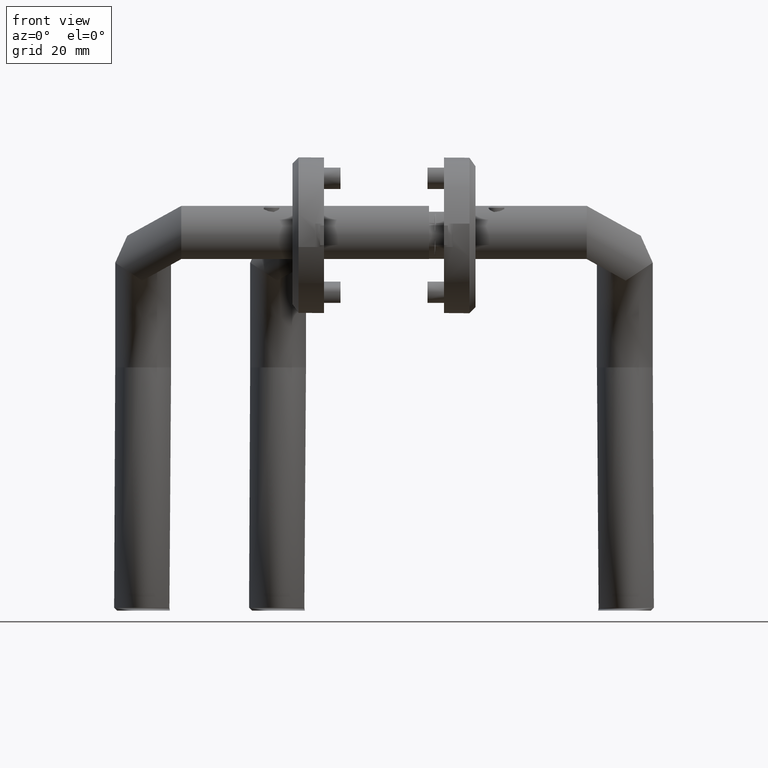
[diagram: clean part render]
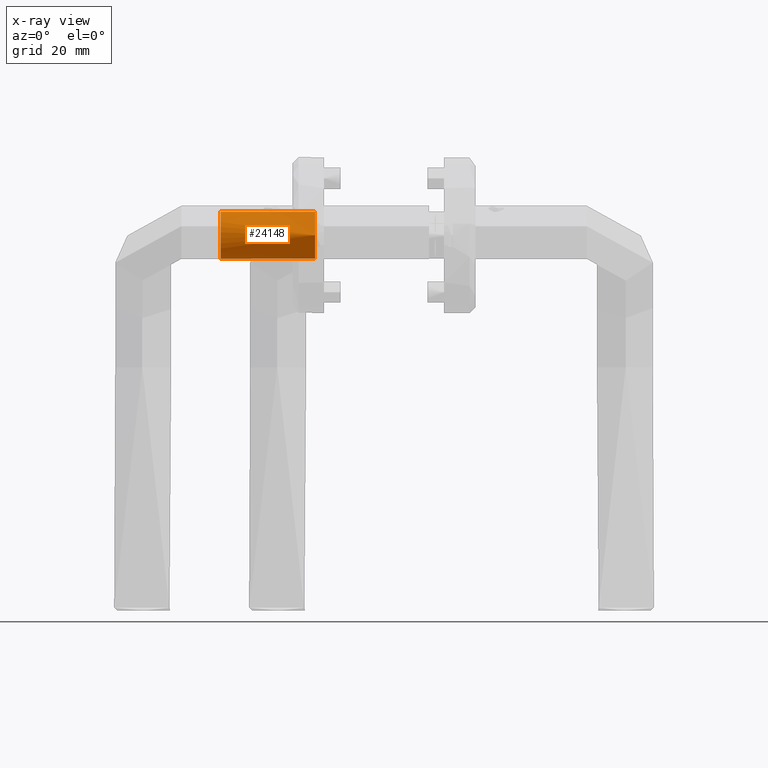
[diagram: x-ray — body ghosted, one internal face saturated and labeled with its STEP entity id]
A machine part, front view, then the same camera in x-ray: the body is ghosted and one INTERNAL B-rep face — a face not visible from any outside direction — is saturated and labeled: STEP entity #24148.
In plain terms, the highlighted cylindrical surface (bore or boss wall) has radius 7.85 mm, axis along (1, -0, 0).
Its self-contained STEP definition (entity closure, byte-faithful):
#46 = CARTESIAN_POINT ( 'NONE',  ( -1.950000000000002200, 0.0000000000000000000, 24.50000000000003900 ) ) ;
#154 = B_SPLINE_CURVE_WITH_KNOTS ( 'NONE', 3,
 ( #35819, #12552, #27435, #1493, #18820, #21563, #4514, #30201, #13045, #33074, #15946, #35937, #1620, #10263, #7646, #27571, #21816, #16184, #33314, #30817, #24663, #19312, #13525, #13291, #27934, #10378, #33559, #30689, #16435, #19189, #18940, #19071, #33441, #7526, #1743, #30441, #7890, #36426, #36190, #16310, #4765, #33673, #10752, #5128, #10631, #2109, #36314, #25158, #36553, #10505, #1864, #24791, #30567, #13650, #1981, #21930, #13407, #24914, #22049, #27686, #4889, #30328 ),
 .UNSPECIFIED., .T., .F.,
 ( 4, 2, 2, 2, 2, 2, 2, 2, 2, 2, 2, 2, 2, 2, 2, 2, 2, 2, 2, 2, 2, 2, 2, 2, 2, 2, 2, 2, 2, 2, 4 ),
 ( 0.0000000000000000000, 0.0004916676346564887100, 0.0009833352693129772000, 0.001475002903969466100, 0.001966670538625954800, 0.002950005807938932200, 0.003441673442595423500, 0.003933341077251914900, 0.004425008711908405700, 0.004916676346564897500, 0.005408343981221388300, 0.005900011615877880100, 0.006391679250534371000, 0.006883346885190862700, 0.007375014519847353600, 0.007866682154503845300, 0.008358349789160337100, 0.008850017423816830500, 0.009341685058473322300, 0.009833352693129814000, 0.01032502032778630600, 0.01081668796244279900, 0.01130835559709929100, 0.01180002323175578300, 0.01229169086641227400, 0.01278335850106876800, 0.01376669377038174400, 0.01425836140503823100, 0.01475002903969471900, 0.01524169667435120600, 0.01573336430900769400 ),
 .UNSPECIFIED. ) ;
#1493 = CARTESIAN_POINT ( 'NONE',  ( -1.975360598605850900, 0.6506773914354808700, 9.919382335193825300 ) ) ;
#1620 = CARTESIAN_POINT ( 'NONE',  ( -2.331953651937851600, 2.419078772989926100, 8.152085949960657300 ) ) ;
#1697 = CIRCLE ( 'NONE', #18287, 7.849999999999999600 ) ;
#1743 = CARTESIAN_POINT ( 'NONE',  ( -1.990259856097238900, -0.8084216882191680400, 5.128687615706724900 ) ) ;
#1864 = CARTESIAN_POINT ( 'NONE',  ( -2.316337309387356500, -2.370987707599417700, 8.309321842416745000 ) ) ;
#1981 = CARTESIAN_POINT ( 'NONE',  ( -2.098586111927949200, -1.526309635492221900, 9.486678156997696100 ) ) ;
#2109 = CARTESIAN_POINT ( 'NONE',  ( -2.353057057999241600, -2.483281829276065900, 7.168260144729445400 ) ) ;
#2502 = DIRECTION ( 'NONE',  ( -1.972152263052526900E-031, -3.889170968374258800E-034, -1.000000000000000000 ) ) ;
#2752 = CARTESIAN_POINT ( 'NONE',  ( -9.800000000000000700, 0.0000000000000000000, 24.50000000000003900 ) ) ;
#2805 = CARTESIAN_POINT ( 'NONE',  ( -1.949999999999996800, -1.540743955509788700E-030, 9.999999999999998200 ) ) ;
#4514 = CARTESIAN_POINT ( 'NONE',  ( -2.049835540205384300, 1.255547246565432300, 9.667990771411915300 ) ) ;
#4765 = CARTESIAN_POINT ( 'NONE',  ( -2.205016718890033800, -1.986824642136730800, 5.973967072932333100 ) ) ;
#4889 = CARTESIAN_POINT ( 'NONE',  ( -1.949999999999997100, -0.1663271035317407700, 10.00000000000000200 ) ) ;
#5128 = CARTESIAN_POINT ( 'NONE',  ( -2.316444650212627000, -2.371347067262873600, 6.691386533385486500 ) ) ;
#7526 = CARTESIAN_POINT ( 'NONE',  ( -1.975438278726479300, -0.6520438707957750800, 5.080865027122197100 ) ) ;
#7646 = CARTESIAN_POINT ( 'NONE',  ( -2.358691909127925300, 2.499886779604183500, 7.665969627596670200 ) ) ;
#7714 = VERTEX_POINT ( 'NONE', #2805 ) ;
#7890 = CARTESIAN_POINT ( 'NONE',  ( -2.049972585820545300, -1.256354931608743900, 5.332506363625991100 ) ) ;
#8795 = FACE_OUTER_BOUND ( 'NONE', #28922, .T. ) ;
#9214 = CARTESIAN_POINT ( 'NONE',  ( -1.950000000000002200, -3.851859888774471700E-031, -7.000000000000020400 ) ) ;
#9965 = VERTEX_POINT ( 'NONE', #46 ) ;
#10263 = CARTESIAN_POINT ( 'NONE',  ( -2.353210535344120800, 2.483744156676579400, 7.828896883903584400 ) ) ;
#10378 = CARTESIAN_POINT ( 'NONE',  ( -2.050145285200961200, 1.257407322524556300, 5.333123441028848600 ) ) ;
#10505 = CARTESIAN_POINT ( 'NONE',  ( -2.332127616856068300, -2.419613174249179500, 8.150025874492422800 ) ) ;
#10520 = EDGE_CURVE ( 'NONE', #9965, #9965, #1697, .T. ) ;
#10631 = CARTESIAN_POINT ( 'NONE',  ( -2.331899841439351500, -2.418910466870164600, 6.847610447314208300 ) ) ;
#10752 = CARTESIAN_POINT ( 'NONE',  ( -2.277493905325217700, -2.244724847799441500, 6.387186893733570500 ) ) ;
#10957 = ORIENTED_EDGE ( 'NONE', *, *, #35429, .T. ) ;
#11922 = CYLINDRICAL_SURFACE ( 'NONE', #25929, 7.849999999999997900 ) ;
#12362 = EDGE_CURVE ( 'NONE', #7714, #7714, #154, .T. ) ;
#12552 = CARTESIAN_POINT ( 'NONE',  ( -1.949999999999996800, 0.1663271035317407400, 9.999999999999998200 ) ) ;
#13045 = CARTESIAN_POINT ( 'NONE',  ( -2.125298850725605400, 1.653862943130006700, 9.381742250496417400 ) ) ;
#13291 = CARTESIAN_POINT ( 'NONE',  ( -2.124991034199241300, 1.652487650323280600, 5.616965081919937900 ) ) ;
#13407 = CARTESIAN_POINT ( 'NONE',  ( -2.027775020038262300, -1.112723584859275100, 9.744680884073282800 ) ) ;
#13525 = CARTESIAN_POINT ( 'NONE',  ( -2.178237088088305700, 1.882872320206645300, 5.847327085301093200 ) ) ;
#13650 = CARTESIAN_POINT ( 'NONE',  ( -2.125309370236194700, -1.653917895037600300, 9.381705236244965100 ) ) ;
#15433 = CARTESIAN_POINT ( 'NONE',  ( -9.800000000000000700, -3.851859888774471700E-031, -7.000000000000020400 ) ) ;
#15946 = CARTESIAN_POINT ( 'NONE',  ( -2.258489346735788100, 2.182940008413204700, 8.761182814414105700 ) ) ;
#16184 = CARTESIAN_POINT ( 'NONE',  ( -2.332032967751786600, 2.419320908842565600, 6.849024537163266800 ) ) ;
#16310 = CARTESIAN_POINT ( 'NONE',  ( -2.178193592102578800, -1.882711239978614300, 5.847114561690550400 ) ) ;
#16435 = CARTESIAN_POINT ( 'NONE',  ( -1.975611367669903200, 0.6539639519109026200, 5.081424318018347800 ) ) ;
#16945 = CARTESIAN_POINT ( 'NONE',  ( -9.800000000000000700, 0.0000000000000000000, 24.50000000000003900 ) ) ;
#18287 = AXIS2_PLACEMENT_3D ( 'NONE', #2752, #34209, #22806 ) ;
#18416 = EDGE_LOOP ( 'NONE', ( #25206 ) ) ;
#18688 = FACE_BOUND ( 'NONE', #18416, .T. ) ;
#18806 = DIRECTION ( 'NONE',  ( 1.000000000000000000, 0.0000000000000000000, 0.0000000000000000000 ) ) ;
#18820 = CARTESIAN_POINT ( 'NONE',  ( -1.990422550186744500, 0.8100577186500034200, 9.870783678293346200 ) ) ;
#18940 = CARTESIAN_POINT ( 'NONE',  ( -1.950021670309643400, 0.1649011203877659400, 5.000068044777509400 ) ) ;
#19071 = CARTESIAN_POINT ( 'NONE',  ( -1.949978466111728300, -0.1628314269536482200, 4.999932383585608900 ) ) ;
#19164 = AXIS2_PLACEMENT_3D ( 'NONE', #15433, #27298, #18806 ) ;
#19189 = CARTESIAN_POINT ( 'NONE',  ( -1.955297538070218400, 0.3307107556887428600, 5.016492887881386600 ) ) ;
#19312 = CARTESIAN_POINT ( 'NONE',  ( -2.205139297483599500, 1.987296848023906200, 5.974557873437207800 ) ) ;
#19809 = VERTEX_POINT ( 'NONE', #9214 ) ;
#20918 = CIRCLE ( 'NONE', #19164, 7.849999999999999600 ) ;
#21563 = CARTESIAN_POINT ( 'NONE',  ( -2.027718302237830400, 1.112353659052461200, 9.744878191350071700 ) ) ;
#21816 = CARTESIAN_POINT ( 'NONE',  ( -2.353169705818935100, 2.483619098085724000, 7.170577947304400000 ) ) ;
#21930 = CARTESIAN_POINT ( 'NONE',  ( -2.049868104465800500, -1.255727908668481200, 9.667869604537886000 ) ) ;
#21976 = ORIENTED_EDGE ( 'NONE', *, *, #10520, .F. ) ;
#22049 = CARTESIAN_POINT ( 'NONE',  ( -1.975401069011180300, -0.6512087187244562900, 9.919252164818814800 ) ) ;
#22687 = DIRECTION ( 'NONE',  ( -1.000000000000000000, 0.0000000000000000000, 0.0000000000000000000 ) ) ;
#22806 = DIRECTION ( 'NONE',  ( 1.000000000000000000, 0.0000000000000000000, 0.0000000000000000000 ) ) ;
#24148 = ADVANCED_FACE ( 'NONE', ( #18688, #8795, #29876 ), #11922, .T. ) ;
#24663 = CARTESIAN_POINT ( 'NONE',  ( -2.254673965305798300, 2.167789861347158900, 6.244209587272367300 ) ) ;
#24791 = CARTESIAN_POINT ( 'NONE',  ( -2.258555993685988500, -2.183181670281117500, 8.760974231041247500 ) ) ;
#24914 = CARTESIAN_POINT ( 'NONE',  ( -1.990504578532325000, -0.8108120482076909300, 9.870512575395313300 ) ) ;
#25158 = CARTESIAN_POINT ( 'NONE',  ( -2.358739951104626500, -2.500029776963275100, 7.664322337496990700 ) ) ;
#25206 = ORIENTED_EDGE ( 'NONE', *, *, #12362, .T. ) ;
#25929 = AXIS2_PLACEMENT_3D ( 'NONE', #16945, #2502, #22687 ) ;
#27298 = DIRECTION ( 'NONE',  ( 1.972152263052526900E-031, 3.889170968374258800E-034, 1.000000000000000000 ) ) ;
#27435 = CARTESIAN_POINT ( 'NONE',  ( -1.955276754880813900, 0.3296665543572500600, 9.983568383296789900 ) ) ;
#27571 = CARTESIAN_POINT ( 'NONE',  ( -2.358767590165173000, 2.500112044877544500, 7.337458955391055900 ) ) ;
#27686 = CARTESIAN_POINT ( 'NONE',  ( -1.955280179655499500, -0.3298365753949352700, 9.983558267054553100 ) ) ;
#27934 = CARTESIAN_POINT ( 'NONE',  ( -2.098814674166304100, 1.527437675453568100, 5.514210146021983200 ) ) ;
#28922 = EDGE_LOOP ( 'NONE', ( #10957 ) ) ;
#29876 = FACE_OUTER_BOUND ( 'NONE', #31137, .T. ) ;
#30201 = CARTESIAN_POINT ( 'NONE',  ( -2.098619396321421700, 1.526494297239596100, 9.486554311812355400 ) ) ;
#30328 = CARTESIAN_POINT ( 'NONE',  ( -1.949999999999996800, -3.117081245895825200E-016, 10.00000000000000000 ) ) ;
#30441 = CARTESIAN_POINT ( 'NONE',  ( -2.027393085559543000, -1.110030853112575100, 5.254003660950454300 ) ) ;
#30567 = CARTESIAN_POINT ( 'NONE',  ( -2.204762430838687900, -1.997535714934926700, 9.037818931509368900 ) ) ;
#30689 = CARTESIAN_POINT ( 'NONE',  ( -1.990421415154604700, 0.8099368660496052400, 5.129219729421327800 ) ) ;
#30817 = CARTESIAN_POINT ( 'NONE',  ( -2.277701288959407900, 2.245415541473274200, 6.388600133605320000 ) ) ;
#31137 = EDGE_LOOP ( 'NONE', ( #21976 ) ) ;
#33074 = CARTESIAN_POINT ( 'NONE',  ( -2.204687313181858100, 1.997229744117846400, 9.038161069933453400 ) ) ;
#33314 = CARTESIAN_POINT ( 'NONE',  ( -2.316578114705569300, 2.371764267103499500, 6.692637083956154400 ) ) ;
#33441 = CARTESIAN_POINT ( 'NONE',  ( -1.955152015191743200, -0.3275476067856502600, 5.016033858577817000 ) ) ;
#33559 = CARTESIAN_POINT ( 'NONE',  ( -2.027546660310505900, 1.111073571916672900, 5.254535162568858600 ) ) ;
#33673 = CARTESIAN_POINT ( 'NONE',  ( -2.254496921815408900, -2.167170158535897800, 6.243169797845409300 ) ) ;
#34209 = DIRECTION ( 'NONE',  ( 1.972152263052526900E-031, 3.889170968374258800E-034, 1.000000000000000000 ) ) ;
#35429 = EDGE_CURVE ( 'NONE', #19809, #19809, #20918, .T. ) ;
#35819 = CARTESIAN_POINT ( 'NONE',  ( -1.949999999999996800, -3.117081245895825200E-016, 10.00000000000000000 ) ) ;
#35937 = CARTESIAN_POINT ( 'NONE',  ( -2.316176063174193000, 2.370476067375542500, 8.310737631373983800 ) ) ;
#36190 = CARTESIAN_POINT ( 'NONE',  ( -2.124852006187540900, -1.651858893999304600, 5.616388023070403100 ) ) ;
#36314 = CARTESIAN_POINT ( 'NONE',  ( -2.358719915615798100, -2.499970141168991400, 7.334772854630328400 ) ) ;
#36426 = CARTESIAN_POINT ( 'NONE',  ( -2.098649725234989400, -1.526616055230514600, 5.513571094196458400 ) ) ;
#36553 = CARTESIAN_POINT ( 'NONE',  ( -2.353272379704625500, -2.483927050670780000, 7.827365174470019200 ) ) ;